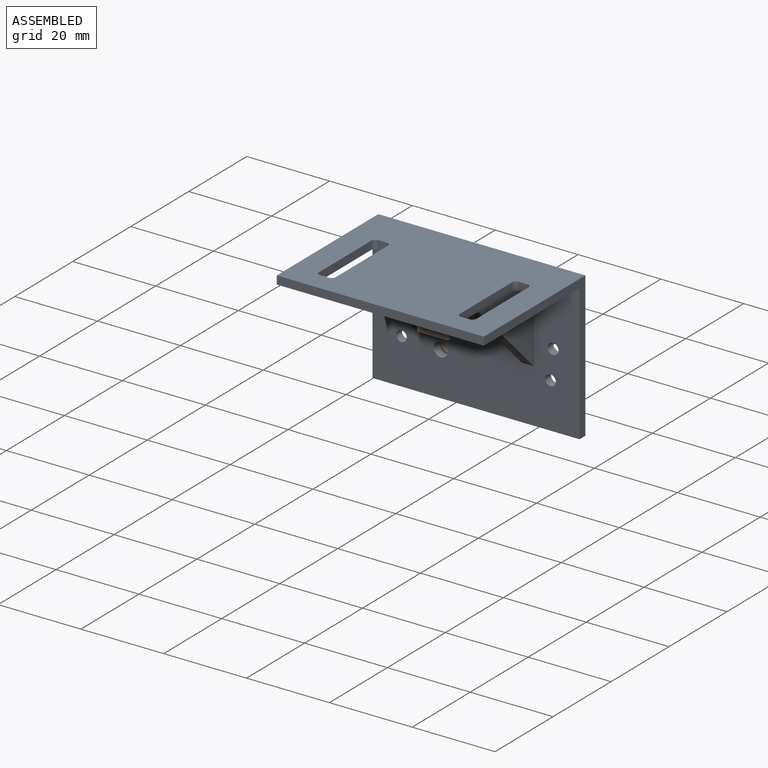
[diagram: assembled view]
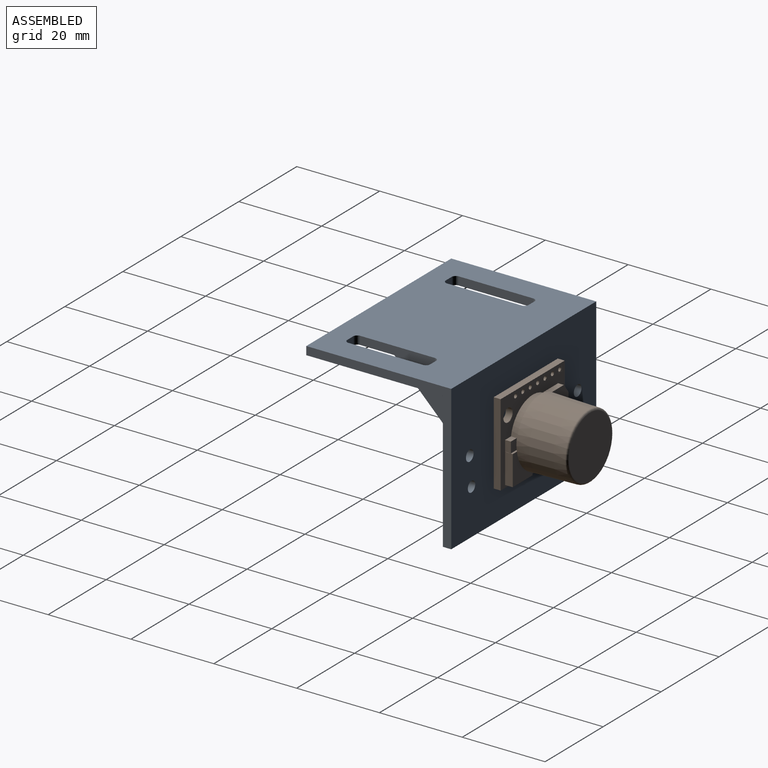
[diagram: assembled view, second angle]
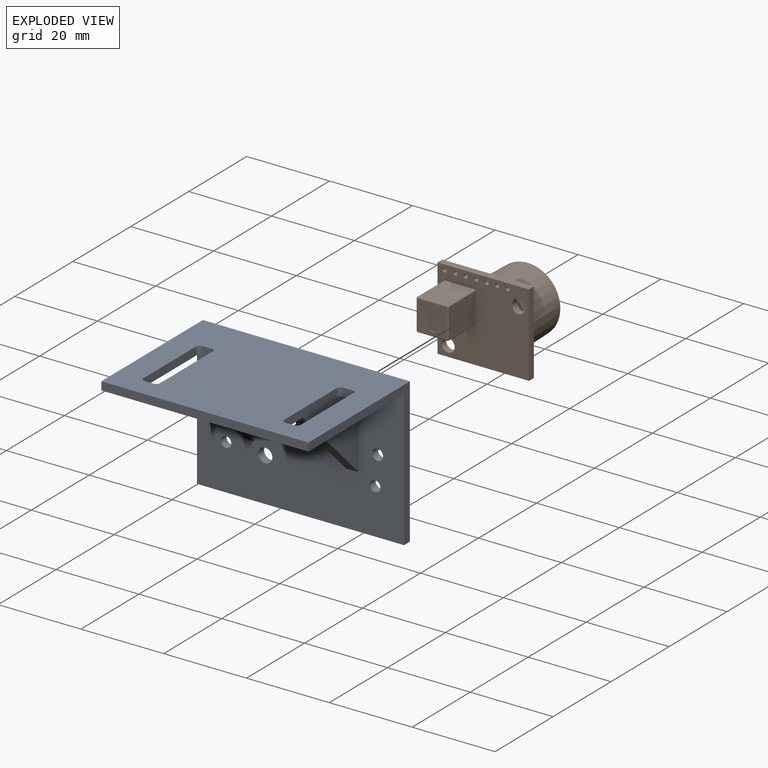
[diagram: exploded view]
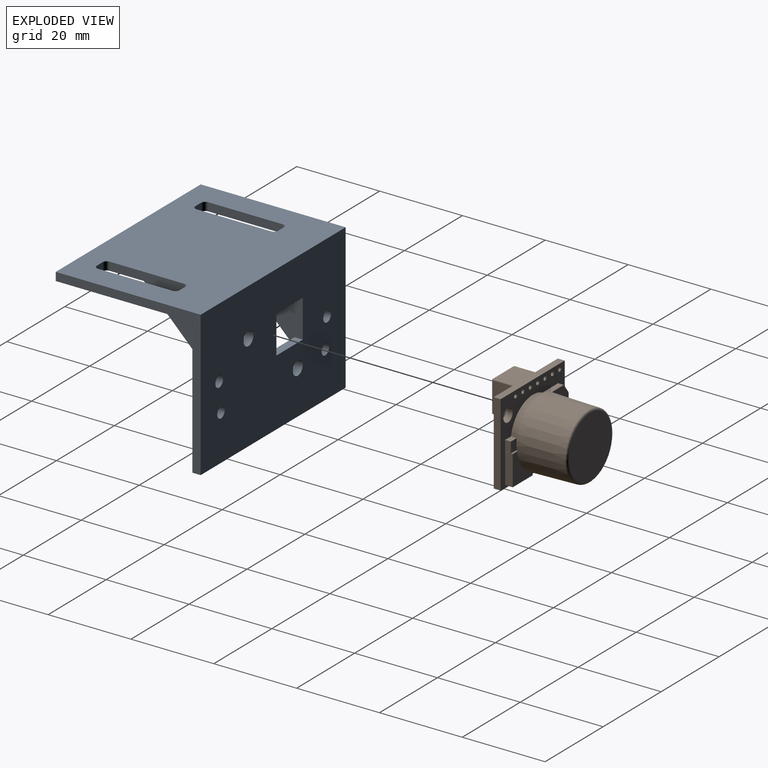
[diagram: exploded view, second angle]
ASSEMBLY  parts=2 mates=2
PART A: 40 faces, bbox 50x35x35 mm
  f0: plane 50x33mm, normal (0,0,-1), area 1370.7mm2, adj f2,f4,f6,f7,f8,f9,f10,f11
  f1: plane 50x35mm, normal (0,0,1), area 1590.7mm2, adj f3,f4,f6,f7,f24,f25,f26,f27
  f2: plane 50x33mm, normal (0,-1,0), area 1407.7mm2, adj f0,f5,f6,f7,f8,f9,f10,f11
  f3: plane 50x35mm, normal (0,1,0), area 1627.7mm2, adj f1,f5,f6,f7,f14,f15,f16,f17
  f4: plane 50x2mm, normal (0,-1,0), area 100mm2, adj f0,f1,f6,f7
  f5: plane 50x2mm, normal (0,0,-1), area 100mm2, adj f2,f3,f6,f7
  f6: plane 35x35mm, normal (1,0,0), area 136mm2, adj f0,f1,f2,f3,f4,f5
  f7: plane 35x35mm, normal (-1,0,0), area 136mm2, adj f0,f1,f2,f3,f4,f5
  f8: plane 20x20mm, normal (0,-0.71,-0.71), area 84.9mm2, adj f0,f2,f9,f10
  f9: plane 20x20mm, normal (1,0,0), area 200mm2, adj f0,f2,f8
  f10: plane 20x20mm, normal (-1,0,0), area 200mm2, adj f0,f2,f8
  f11: plane 20x20mm, normal (0,-0.71,-0.71), area 84.9mm2, adj f0,f2,f12,f13
  f12: plane 20x20mm, normal (-1,0,0), area 200mm2, adj f0,f2,f11
  f13: plane 20x20mm, normal (1,0,0), area 200mm2, adj f0,f2,f11
  f14: plane 9.12x2mm, normal (0,0,-1), area 18.2mm2, adj f2,f3,f15,f17
  f15: plane 9.12x2mm, normal (-1,0,0), area 18.2mm2, adj f2,f3,f14,f16
  f16: plane 9.12x2mm, normal (0,0,1), area 18.2mm2, adj f2,f3,f15,f17
  f17: plane 9.12x2mm, normal (1,0,0), area 18.2mm2, adj f2,f3,f14,f16
  f18: cylinder r=1.69mm len=3.38mm, axis (0,1,0), area 21.2mm2, adj f2,f3
  f19: cylinder r=1.69mm len=3.38mm, axis (0,1,0), area 21.2mm2, adj f2,f3
  f20: cylinder r=1.28mm len=2.55mm, axis (0,1,0), area 16mm2, adj f2,f3
  f21: cylinder r=1.28mm len=2.55mm, axis (0,1,0), area 16mm2, adj f2,f3
  f22: cylinder r=1.32mm len=2.64mm, axis (0,1,0), area 16.6mm2, adj f2,f3
  f23: cylinder r=1.32mm len=2.64mm, axis (0,1,0), area 16.6mm2, adj f2,f3
  f24: plane 2.03x2mm, normal (0,-1,0), area 4.1mm2, adj f0,f1,f25,f31
  f25: cylinder r=1mm len=2mm, axis (0,0,1), area 3.1mm2, adj f0,f1,f24,f26
  f26: plane 18x2mm, normal (1,0,0), area 36mm2, adj f0,f1,f25,f27
  f27: cylinder r=1mm len=2mm, axis (0,0,1), area 3.1mm2, adj f0,f1,f26,f28
  f28: plane 2.03x2mm, normal (0,1,0), area 4.1mm2, adj f0,f1,f27,f29
  f29: cylinder r=1mm len=2mm, axis (0,0,1), area 3.1mm2, adj f0,f1,f28,f30
  f30: plane 18x2mm, normal (-1,0,0), area 36mm2, adj f0,f1,f29,f31
  f31: cylinder r=1mm len=2mm, axis (0,0,1), area 3.1mm2, adj f0,f1,f24,f30
  f32: plane 2.03x2mm, normal (0,-1,0), area 4.1mm2, adj f0,f1,f33,f39
  f33: cylinder r=1mm len=2mm, axis (0,0,1), area 3.1mm2, adj f0,f1,f32,f34
  f34: plane 18x2mm, normal (1,0,0), area 36mm2, adj f0,f1,f33,f35
  f35: cylinder r=1mm len=2mm, axis (0,0,1), area 3.1mm2, adj f0,f1,f34,f36
  f36: plane 2.03x2mm, normal (0,1,0), area 4.1mm2, adj f0,f1,f35,f37
  f37: cylinder r=1mm len=2mm, axis (0,0,1), area 3.1mm2, adj f0,f1,f36,f38
  f38: plane 18x2mm, normal (-1,0,0), area 36mm2, adj f0,f1,f37,f39
  f39: cylinder r=1mm len=2mm, axis (0,0,1), area 3.1mm2, adj f0,f1,f32,f38
PART B: 282 faces, bbox 22.1x19.9x25.1 mm
  f0: plane 0.11x0.05mm, normal (0,1,0), area 0mm2, adj f1,f6,f7,f206
  f1: plane 0.75x0.05mm, normal (1,0,0), area 0mm2, adj f0,f2,f7,f206
  f2: plane 0.09x0.05mm, normal (0,-1,0), area 0mm2, adj f1,f3,f7,f206
  f3: extruded ~0.19x0.13mm, area 0mm2, adj f2,f4,f7,f206
  f4: plane 0.09x0.05mm, normal (-1,0,0), area 0mm2, adj f3,f5,f7,f206
  f5: extruded ~0.17x0.05mm, area 0mm2, adj f4,f6,f7,f206
  f6: plane 0.56x0.05mm, normal (-1,0,0), area 0mm2, adj f0,f5,f7,f206
  f7: plane 0.75x0.28mm, normal (0,0,-1), area 0.1mm2, adj f0,f1,f2,f3,f4,f5,f6
  f8: plane 0.49x0.05mm, normal (0,1,0), area 0mm2, adj f9,f26,f27,f206
  f9: plane 0.1x0.05mm, normal (1,0,0), area 0mm2, adj f8,f10,f27,f206
  f10: plane 0.34x0.05mm, normal (0,-1,0), area 0mm2, adj f9,f11,f27,f206
  f11: extruded ~0.13x0.12mm, area 0mm2, adj f10,f12,f27,f206
  f12: extruded ~0.17x0.17mm, area 0mm2, adj f11,f13,f27,f206
  f13: cylinder r=0.25mm len=0.14mm, axis (0,0,1), area 0mm2, adj f12,f14,f27,f206
  f14: extruded ~0.15x0.06mm, area 0mm2, adj f13,f15,f27,f206
  f15: extruded ~0.17x0.06mm, area 0mm2, adj f14,f16,f27,f206
  f16: extruded ~0.17x0.06mm, area 0mm2, adj f15,f17,f27,f206
  f17: extruded ~0.17x0.07mm, area 0mm2, adj f16,f18,f27,f206
  f18: plane 0.11x0.05mm, normal (0,1,0), area 0mm2, adj f17,f19,f27,f206
  f19: extruded ~0.1x0.05mm, area 0mm2, adj f18,f20,f27,f206
  f20: cylinder r=0.13mm len=0.08mm, axis (0,0,-1), area 0mm2, adj f19,f21,f27,f206
  f21: extruded ~0.09x0.05mm, area 0mm2, adj f20,f22,f27,f206
  f22: extruded ~0.09x0.05mm, area 0mm2, adj f21,f23,f27,f206
  f23: cylinder r=0.18mm len=0.11mm, axis (0,0,-1), area 0mm2, adj f22,f24,f27,f206
  f24: extruded ~0.15x0.14mm, area 0mm2, adj f23,f25,f27,f206
  f25: extruded ~0.15x0.15mm, area 0mm2, adj f24,f26,f27,f206
  f26: cylinder r=0.25mm len=0.14mm, axis (0,0,1), area 0mm2, adj f8,f25,f27,f206
  f27: plane 0.75x0.49mm, normal (0,0,-1), area 0.2mm2, adj f8,f9,f10,f11,f12,f13,f14,f15
  f28: cylinder r=0.14mm len=0.1mm, axis (0,0,1), area 0mm2, adj f29,f54,f55,f206
  f29: cylinder r=0.12mm len=0.07mm, axis (0,0,1), area 0mm2, adj f28,f30,f55,f206
  f30: cylinder r=0.17mm len=0.09mm, axis (0,0,1), area 0mm2, adj f29,f31,f55,f206
  f31: extruded ~0.14x0.06mm, area 0mm2, adj f30,f32,f55,f206
  f32: extruded ~0.16x0.05mm, area 0mm2, adj f31,f33,f55,f206
  f33: extruded ~0.15x0.05mm, area 0mm2, adj f32,f34,f55,f206
  f34: extruded ~0.16x0.07mm, area 0mm2, adj f33,f35,f55,f206
  f35: plane 0.11x0.05mm, normal (0,1,0), area 0mm2, adj f34,f36,f55,f206
  f36: extruded ~0.11x0.11mm, area 0mm2, adj f35,f37,f55,f206
  f37: extruded ~0.08x0.05mm, area 0mm2, adj f36,f38,f55,f206
  f38: extruded ~0.08x0.05mm, area 0mm2, adj f37,f39,f55,f206
  f39: extruded ~0.12x0.11mm, area 0mm2, adj f38,f40,f55,f206
  f40: plane 0.05x0.03mm, normal (0,-1,0), area 0mm2, adj f39,f41,f55,f206
  f41: plane 0.09x0.05mm, normal (-1,0,0), area 0mm2, adj f40,f42,f55,f206
  f42: plane 0.05x0.05mm, normal (0,1,0), area 0mm2, adj f41,f43,f55,f206
  f43: extruded ~0.11x0.05mm, area 0mm2, adj f42,f44,f55,f206
  f44: extruded ~0.1x0.05mm, area 0mm2, adj f43,f45,f55,f206
  f45: extruded ~0.1x0.05mm, area 0mm2, adj f44,f46,f55,f206
  f46: extruded ~0.1x0.05mm, area 0mm2, adj f45,f47,f55,f206
  f47: extruded ~0.09x0.05mm, area 0mm2, adj f46,f48,f55,f206
  f48: extruded ~0.09x0.05mm, area 0mm2, adj f47,f49,f55,f206
  f49: plane 0.12x0.05mm, normal (0,-1,0), area 0mm2, adj f48,f50,f55,f206
  f50: extruded ~0.16x0.07mm, area 0mm2, adj f49,f51,f55,f206
  f51: extruded ~0.17x0.06mm, area 0mm2, adj f50,f52,f55,f206
  f52: extruded ~0.18x0.06mm, area 0mm2, adj f51,f53,f55,f206
  f53: extruded ~0.17x0.07mm, area 0mm2, adj f52,f54,f55,f206
  f54: cylinder r=0.19mm len=0.12mm, axis (0,0,1), area 0mm2, adj f28,f53,f55,f206
  f55: plane 0.76x0.49mm, normal (0,0,-1), area 0.2mm2, adj f28,f29,f30,f31,f32,f33,f34,f35
  f56: plane 0.1x0.05mm, normal (0,1,0), area 0mm2, adj f57,f66,f70,f206
  f57: plane 0.1x0.05mm, normal (1,0,0), area 0mm2, adj f56,f58,f70,f206
  f58: plane 0.1x0.05mm, normal (0,-1,0), area 0mm2, adj f57,f59,f70,f206
  f59: plane 0.47x0.05mm, normal (1,0,0), area 0mm2, adj f58,f60,f70,f206
  f60: plane 0.09x0.05mm, normal (0,-1,0), area 0mm2, adj f59,f61,f70,f206
  f61: plane 0.48x0.33mm, normal (-0.82,-0.57,0), area 0mm2, adj f60,f62,f70,f206
  f62: plane 0.09x0.05mm, normal (-1,0,0), area 0mm2, adj f61,f63,f70,f206
  f63: plane 0.3x0.05mm, normal (0,1,0), area 0mm2, adj f62,f64,f70,f206
  f64: plane 0.17x0.05mm, normal (-1,0,0), area 0mm2, adj f63,f65,f70,f206
  f65: plane 0.11x0.05mm, normal (0,1,0), area 0mm2, adj f64,f66,f70,f206
  f66: plane 0.17x0.05mm, normal (1,0,0), area 0mm2, adj f56,f65,f70,f206
  f67: plane 0.31x0.05mm, normal (-1,0,0), area 0mm2, adj f68,f69,f70,f71
  f68: plane 0.2x0.05mm, normal (0,-1,0), area 0mm2, adj f67,f69,f70,f71
  f69: plane 0.31x0.2mm, normal (0.84,0.54,0), area 0mm2, adj f67,f68,f70,f71
  f70: plane 0.74x0.51mm, normal (0,0,-1), area 0.2mm2, adj f56,f57,f58,f59,f60,f61,f62,f63
  f71: plane 0.31x0.2mm, normal (0,0,-1), area 0mm2, adj f67,f68,f69
  f72: extruded ~0.12x0.05mm, area 0mm2, adj f73,f92,f93,f206
  f73: plane 0.18x0.05mm, normal (1,0.08,0), area 0mm2, adj f72,f74,f93,f206
  f74: plane 0.3x0.05mm, normal (0,1,0), area 0mm2, adj f73,f75,f93,f206
  f75: plane 0.1x0.05mm, normal (1,0,0), area 0mm2, adj f74,f76,f93,f206
  f76: plane 0.4x0.05mm, normal (0,-1,0), area 0mm2, adj f75,f77,f93,f206
  f77: plane 0.4x0.05mm, normal (-1,-0.08,0), area 0mm2, adj f76,f78,f93,f206
  f78: plane 0.09x0.05mm, normal (0,1,0), area 0mm2, adj f77,f79,f93,f206
  f79: extruded ~0.12x0.06mm, area 0mm2, adj f78,f80,f93,f206
  f80: extruded ~0.1x0.05mm, area 0mm2, adj f79,f81,f93,f206
  f81: extruded ~0.11x0.05mm, area 0mm2, adj f80,f82,f93,f206
  f82: extruded ~0.12x0.05mm, area 0mm2, adj f81,f83,f93,f206
  f83: cylinder r=0.12mm len=0.1mm, axis (0,0,-1), area 0mm2, adj f82,f84,f93,f206
  f84: cylinder r=0.12mm len=0.08mm, axis (0,0,-1), area 0mm2, adj f83,f85,f93,f206
  f85: extruded ~0.1x0.05mm, area 0mm2, adj f84,f86,f93,f206
  f86: plane 0.11x0.05mm, normal (0,-1,0), area 0mm2, adj f85,f87,f93,f206
  f87: extruded ~0.17x0.08mm, area 0mm2, adj f86,f88,f93,f206
  f88: extruded ~0.16x0.05mm, area 0mm2, adj f87,f89,f93,f206
  f89: extruded ~0.18x0.08mm, area 0mm2, adj f88,f90,f93,f206
  f90: extruded ~0.19x0.07mm, area 0mm2, adj f89,f91,f93,f206
  f91: extruded ~0.18x0.07mm, area 0mm2, adj f90,f92,f93,f206
  f92: cylinder r=0.22mm len=0.16mm, axis (0,0,1), area 0mm2, adj f72,f91,f93,f206
  f93: plane 0.75x0.49mm, normal (0,0,-1), area 0.2mm2, adj f72,f73,f74,f75,f76,f77,f78,f79
  f94: plane 0.1x0.05mm, normal (1,0,0), area 0mm2, adj f95,f105,f106,f206
  f95: plane 0.2x0.05mm, normal (0,-1,0), area 0mm2, adj f94,f96,f106,f206
  f96: plane 0.2x0.05mm, normal (1,0,0), area 0mm2, adj f95,f97,f106,f206
  f97: plane 0.1x0.05mm, normal (0,-1,0), area 0mm2, adj f96,f98,f106,f206
  f98: plane 0.2x0.05mm, normal (-1,0,0), area 0mm2, adj f97,f99,f106,f206
  f99: plane 0.2x0.05mm, normal (0,-1,0), area 0mm2, adj f98,f100,f106,f206
  f100: plane 0.1x0.05mm, normal (-1,0,0), area 0mm2, adj f99,f101,f106,f206
  f101: plane 0.2x0.05mm, normal (0,1,0), area 0mm2, adj f100,f102,f106,f206
  f102: plane 0.2x0.05mm, normal (-1,0,0), area 0mm2, adj f101,f103,f106,f206
  f103: plane 0.1x0.05mm, normal (0,1,0), area 0mm2, adj f102,f104,f106,f206
  f104: plane 0.2x0.05mm, normal (1,0,0), area 0mm2, adj f103,f105,f106,f206
  f105: plane 0.2x0.05mm, normal (0,1,0), area 0mm2, adj f94,f104,f106,f206
  f106: plane 0.49x0.49mm, normal (0,0,-1), area 0.1mm2, adj f94,f95,f96,f97,f98,f99,f100,f101
  f107: plane 0.73x0.28mm, normal (0.93,0.36,0), area 0mm2, adj f108,f113,f114,f206
  f108: plane 0.12x0.05mm, normal (0,-1,0), area 0mm2, adj f107,f109,f114,f206
  f109: plane 0.61x0.22mm, normal (-0.94,-0.34,0), area 0mm2, adj f108,f110,f114,f206
  f110: plane 0.61x0.22mm, normal (0.94,-0.34,0), area 0mm2, adj f109,f111,f114,f206
  f111: plane 0.12x0.05mm, normal (0,-1,0), area 0mm2, adj f110,f112,f114,f206
  f112: plane 0.73x0.28mm, normal (-0.93,0.36,0), area 0mm2, adj f111,f113,f114,f206
  f113: plane 0.11x0.05mm, normal (0,1,0), area 0mm2, adj f107,f112,f114,f206
  f114: plane 0.73x0.67mm, normal (0,0,-1), area 0.2mm2, adj f107,f108,f109,f110,f111,f112,f113
  f115: plane 0.24x0.05mm, normal (0,-1,0), area 0mm2, adj f116,f119,f127,f206
  f116: plane 0.73x0.05mm, normal (-1,0,0), area 0mm2, adj f115,f117,f127,f206
  f117: plane 0.24x0.05mm, normal (0,1,0), area 0mm2, adj f116,f118,f127,f206
  f118: extruded ~0.37x0.37mm, area 0mm2, adj f117,f119,f127,f206
  f119: extruded ~0.37x0.36mm, area 0mm2, adj f115,f118,f127,f206
  f120: plane 0.12x0.05mm, normal (0,-1,0), area 0mm2, adj f121,f126,f127,f128
  f121: plane 0.52x0.05mm, normal (1,0,0), area 0mm2, adj f120,f122,f127,f128
  f122: plane 0.12x0.05mm, normal (0,1,0), area 0mm2, adj f121,f123,f127,f128
  f123: extruded ~0.2x0.07mm, area 0mm2, adj f122,f124,f127,f128
  f124: extruded ~0.19x0.05mm, area 0mm2, adj f123,f125,f127,f128
  f125: extruded ~0.2x0.05mm, area 0mm2, adj f124,f126,f127,f128
  f126: extruded ~0.2x0.07mm, area 0mm2, adj f120,f125,f127,f128
  f127: plane 0.73x0.61mm, normal (0,0,-1), area 0.2mm2, adj f115,f116,f117,f118,f119,f120,f121,f122
  f128: plane 0.52x0.38mm, normal (0,0,-1), area 0.2mm2, adj f120,f121,f122,f123,f124,f125,f126
  f129: plane 0.73x0.05mm, normal (1,0,0), area 0mm2, adj f130,f138,f139,f206
  f130: plane 0.11x0.05mm, normal (0,-1,0), area 0mm2, adj f129,f131,f139,f206
  f131: plane 0.56x0.05mm, normal (-1,0,0), area 0mm2, adj f130,f132,f139,f206
  f132: plane 0.56x0.36mm, normal (0.84,-0.54,0), area 0mm2, adj f131,f133,f139,f206
  f133: plane 0.11x0.05mm, normal (0,-1,0), area 0mm2, adj f132,f134,f139,f206
  f134: plane 0.73x0.05mm, normal (-1,0,0), area 0mm2, adj f133,f135,f139,f206
  f135: plane 0.11x0.05mm, normal (0,1,0), area 0mm2, adj f134,f136,f139,f206
  f136: plane 0.56x0.05mm, normal (1,0,0), area 0mm2, adj f135,f137,f139,f206
  f137: plane 0.56x0.36mm, normal (-0.84,0.54,0), area 0mm2, adj f136,f138,f139,f206
  f138: plane 0.11x0.05mm, normal (0,1,0), area 0mm2, adj f129,f137,f139,f206
  f139: plane 0.73x0.58mm, normal (0,0,-1), area 0.2mm2, adj f129,f130,f131,f132,f133,f134,f135,f136
  f140: extruded ~0.22x0.09mm, area 0mm2, adj f141,f161,f162,f206
  f141: plane 0.07x0.05mm, normal (-0.96,0.27,0), area 0mm2, adj f140,f142,f162,f206
  f142: plane 0.08x0.05mm, normal (0,1,0), area 0mm2, adj f141,f143,f162,f206
  f143: plane 0.38x0.05mm, normal (1,0,0), area 0mm2, adj f142,f144,f162,f206
  f144: plane 0.3x0.05mm, normal (0,-1,0), area 0mm2, adj f143,f145,f162,f206
  f145: plane 0.11x0.05mm, normal (-1,0,0), area 0mm2, adj f144,f146,f162,f206
  f146: plane 0.19x0.05mm, normal (0,1,0), area 0mm2, adj f145,f147,f162,f206
  f147: plane 0.1x0.05mm, normal (-1,0,0), area 0mm2, adj f146,f148,f162,f206
  f148: extruded ~0.22x0.1mm, area 0mm2, adj f147,f149,f162,f206
  f149: extruded ~0.17x0.07mm, area 0mm2, adj f148,f150,f162,f206
  f150: extruded ~0.21x0.07mm, area 0mm2, adj f149,f151,f162,f206
  f151: extruded ~0.21x0.06mm, area 0mm2, adj f150,f152,f162,f206
  f152: extruded ~0.17x0.07mm, area 0mm2, adj f151,f153,f162,f206
  f153: extruded ~0.14x0.05mm, area 0mm2, adj f152,f154,f162,f206
  f154: extruded ~0.11x0.06mm, area 0mm2, adj f153,f155,f162,f206
  f155: plane 0.12x0.05mm, normal (0,1,0), area 0mm2, adj f154,f156,f162,f206
  f156: extruded ~0.18x0.1mm, area 0mm2, adj f155,f157,f162,f206
  f157: extruded ~0.22x0.06mm, area 0mm2, adj f156,f158,f162,f206
  f158: extruded ~0.25x0.1mm, area 0mm2, adj f157,f159,f162,f206
  f159: extruded ~0.28x0.1mm, area 0mm2, adj f158,f160,f162,f206
  f160: extruded ~0.28x0.1mm, area 0mm2, adj f159,f161,f162,f206
  f161: extruded ~0.26x0.1mm, area 0mm2, adj f140,f160,f162,f206
  f162: plane 0.76x0.69mm, normal (0,0,-1), area 0.2mm2, adj f140,f141,f142,f143,f144,f145,f146,f147
  f163: cylinder r=0.53mm len=1.07mm, axis (0,0,-1), area 0.1mm2, adj f164,f184
  f164: plane 1.07x1.07mm, normal (0,0,1), area 0.1mm2, adj f163,f270
  f165: cylinder r=1.65mm len=3.3mm, axis (0,0,-1), area 0.3mm2, adj f166,f184
  f166: plane 3.3x3.3mm, normal (0,0,1), area 0.6mm2, adj f165,f277
  f167: cylinder r=0.53mm len=1.07mm, axis (0,0,-1), area 0.1mm2, adj f168,f184
  f168: plane 1.07x1.07mm, normal (0,0,1), area 0.1mm2, adj f167,f274
  f169: cylinder r=0.53mm len=1.07mm, axis (0,0,-1), area 0.1mm2, adj f170,f184
  f170: plane 1.07x1.07mm, normal (0,0,1), area 0.1mm2, adj f169,f272
  f171: plane 1.27x0.03mm, normal (0,1,0), area 0mm2, adj f172,f174,f175,f184
  f172: plane 1.27x0.03mm, normal (-1,0,0), area 0mm2, adj f171,f173,f175,f184
  f173: plane 1.27x0.03mm, normal (0,-1,0), area 0mm2, adj f172,f174,f175,f184
  f174: plane 1.27x0.03mm, normal (1,0,0), area 0mm2, adj f171,f173,f175,f184
  f175: plane 1.27x1.27mm, normal (0,0,1), area 0.8mm2, adj f171,f172,f173,f174,f275
  f176: cylinder r=0.53mm len=1.07mm, axis (0,0,-1), area 0.1mm2, adj f177,f184
  f177: plane 1.07x1.07mm, normal (0,0,1), area 0.1mm2, adj f176,f273
  f178: cylinder r=1.65mm len=3.3mm, axis (0,0,-1), area 0.3mm2, adj f179,f184
  f179: plane 3.3x3.3mm, normal (0,0,1), area 0.6mm2, adj f178,f276
  f180: cylinder r=0.53mm len=1.07mm, axis (0,0,-1), area 0.1mm2, adj f181,f184
  f181: plane 1.07x1.07mm, normal (0,0,1), area 0.1mm2, adj f180,f269
  f182: cylinder r=0.53mm len=1.07mm, axis (0,0,-1), area 0.1mm2, adj f183,f184
  f183: plane 1.07x1.07mm, normal (0,0,1), area 0.1mm2, adj f182,f271
  f184: plane 22.1x19.94mm, normal (0,0,1), area 153mm2, adj f163,f165,f167,f169,f171,f172,f173,f174
  f185: cylinder r=0.53mm len=1.07mm, axis (0,0,1), area 0.1mm2, adj f186,f206
  f186: plane 1.07x1.07mm, normal (0,0,-1), area 0.1mm2, adj f185,f273
  f187: cylinder r=0.53mm len=1.07mm, axis (0,0,1), area 0.1mm2, adj f188,f206
  f188: plane 1.07x1.07mm, normal (0,0,-1), area 0.1mm2, adj f187,f270
  f189: cylinder r=0.53mm len=1.07mm, axis (0,0,1), area 0.1mm2, adj f190,f206
  f190: plane 1.07x1.07mm, normal (0,0,-1), area 0.1mm2, adj f189,f269
  f191: cylinder r=1.65mm len=3.3mm, axis (0,0,1), area 0.3mm2, adj f192,f206
  f192: plane 3.3x3.3mm, normal (0,0,-1), area 0.6mm2, adj f191,f276
  f193: plane 1.27x0.03mm, normal (0,1,0), area 0mm2, adj f194,f196,f197,f206
  f194: plane 1.27x0.03mm, normal (1,0,0), area 0mm2, adj f193,f195,f197,f206
  f195: plane 1.27x0.03mm, normal (0,-1,0), area 0mm2, adj f194,f196,f197,f206
  f196: plane 1.27x0.03mm, normal (-1,0,0), area 0mm2, adj f193,f195,f197,f206
  f197: plane 1.27x1.27mm, normal (0,0,-1), area 0.8mm2, adj f193,f194,f195,f196,f275
  f198: cylinder r=1.65mm len=3.3mm, axis (0,0,1), area 0.3mm2, adj f199,f206
  f199: plane 3.3x3.3mm, normal (0,0,-1), area 0.6mm2, adj f198,f277
  f200: cylinder r=0.53mm len=1.07mm, axis (0,0,1), area 0.1mm2, adj f201,f206
  f201: plane 1.07x1.07mm, normal (0,0,-1), area 0.1mm2, adj f200,f271
  f202: cylinder r=0.53mm len=1.07mm, axis (0,0,1), area 0.1mm2, adj f203,f206
  f203: plane 1.07x1.07mm, normal (0,0,-1), area 0.1mm2, adj f202,f272
  f204: cylinder r=0.53mm len=1.07mm, axis (0,0,1), area 0.1mm2, adj f205,f206
  f205: plane 1.07x1.07mm, normal (0,0,-1), area 0.1mm2, adj f204,f274
  f206: plane 22.1x19.94mm, normal (0,0,-1), area 355.1mm2, adj f0,f1,f2,f3,f4,f5,f6,f8
  f207: plane 2.38x1.4mm, normal (0,1,0), area 3.3mm2, adj f184,f211,f212,f225
  f208: plane 5.29x1.4mm, normal (0,-1,0), area 7.4mm2, adj f184,f209,f212,f225
  f209: plane 2.29x1.65mm, normal (-0.81,-0.59,0), area 3.9mm2, adj f184,f208,f210,f212
  f210: plane 7.37x1.4mm, normal (-1,0,0), area 10.3mm2, adj f184,f209,f211,f212
  f211: plane 1.91x1.65mm, normal (-0.65,0.76,0), area 3.5mm2, adj f184,f207,f210,f212
  f212: plane 11.3x6.94mm, normal (0,0,1), area 38.3mm2, adj f207,f208,f209,f210,f211,f225
  f213: plane 6.83x1.4mm, normal (0,1,0), area 9.5mm2, adj f184,f214,f215,f216
  f214: plane 1.4x1.31mm, normal (1,0,0), area 1.8mm2, adj f184,f213,f216,f225
  f215: plane 2.09x1.4mm, normal (-1,0,0), area 2.9mm2, adj f184,f213,f216,f225
  f216: plane 6.83x2.09mm, normal (0,0,1), area 7.8mm2, adj f213,f214,f215,f225
  f217: plane 2x1.4mm, normal (0,1,0), area 2.8mm2, adj f184,f218,f220,f225
  f218: plane 2.58x1.4mm, normal (1,0,0), area 3.6mm2, adj f184,f217,f219,f220
  f219: plane 2.03x1.4mm, normal (0,-1,0), area 2.8mm2, adj f184,f218,f220,f225
  f220: plane 2.58x2.03mm, normal (0,0,1), area 5mm2, adj f217,f218,f219,f225
  f221: torus R=7.42mm, axis (0,0,-1), area 38.3mm2, adj f222,f223
  f222: cone r=8.19mm half-angle=1.3deg, axis (0,0,-1), area 586mm2, adj f221,f224,f230
  f223: plane 14.84x14.84mm, normal (0,0,1), area 173mm2, adj f221
  f224: plane 16.38x16.38mm, normal (0,0,-1), area 23.5mm2, adj f222,f225,f228,f229
  f225: cylinder r=7.62mm len=15.24mm, axis (0,0,1), area 41.9mm2, adj f184,f207,f208,f212,f214,f215,f216,f217
  f226: plane 6.86x1.85mm, normal (0,1,0), area 12.7mm2, adj f184,f227,f229,f230
  f227: plane 7.24x1.85mm, normal (1,0,0), area 13.4mm2, adj f184,f226,f228,f230
  f228: plane 2x1.85mm, normal (0,-1,0), area 3.7mm2, adj f184,f224,f225,f227,f230
  f229: plane 1.85x1.32mm, normal (-1,0,0), area 2.4mm2, adj f184,f224,f225,f226,f230
  f230: plane 7.24x6.86mm, normal (0,0,1), area 25.1mm2, adj f222,f226,f227,f228,f229
  f231: cylinder r=0.13mm len=0.25mm, axis (0,0,1), area 0.1mm2, adj f232,f234,f239,f248
  f232: plane 1.32x0.25mm, normal (0,-1,0), area 0.3mm2, adj f231,f237,f239,f248
  f233: cylinder r=0.13mm len=0.25mm, axis (0,0,1), area 0.1mm2, adj f234,f236,f239,f248
  f234: plane 4.83x0.25mm, normal (1,0,0), area 1.2mm2, adj f231,f233,f239,f248
  f235: cylinder r=0.13mm len=0.25mm, axis (0,0,1), area 0.1mm2, adj f236,f238,f239,f248
  f236: plane 1.32x0.25mm, normal (0,1,0), area 0.3mm2, adj f233,f235,f239,f248
  f237: cylinder r=0.13mm len=0.25mm, axis (0,0,1), area 0.1mm2, adj f232,f238,f239,f248
  f238: plane 4.83x0.25mm, normal (-1,0,0), area 1.2mm2, adj f235,f237,f239,f248
  f239: plane 5.08x1.58mm, normal (0,0,-1), area 8mm2, adj f231,f232,f233,f234,f235,f236,f237,f238
  f240: cylinder r=3.81mm len=2.19mm, axis (0,0,1), area 0.2mm2, adj f241,f247,f248,f250
  f241: plane 2.74x0.05mm, normal (0,1,0), area 0.1mm2, adj f240,f242,f248,f262
  f242: cylinder r=3.81mm len=2.19mm, axis (0,0,1), area 0.2mm2, adj f241,f243,f248,f249
  f243: plane 2.74x0.05mm, normal (1,0,0), area 0.1mm2, adj f242,f244,f248,f257
  f244: cylinder r=3.81mm len=2.19mm, axis (0,0,1), area 0.2mm2, adj f243,f245,f248,f252
  f245: plane 2.74x0.05mm, normal (0,-1,0), area 0.1mm2, adj f244,f246,f248,f264
  f246: cylinder r=3.81mm len=2.19mm, axis (0,0,1), area 0.2mm2, adj f245,f247,f248,f251
  f247: plane 2.74x0.05mm, normal (-1,0,0), area 0.1mm2, adj f240,f246,f248,f263
  f248: plane 7.11x7.11mm, normal (0,0,-1), area 35.8mm2, adj f231,f232,f233,f234,f235,f236,f237,f238
  f249: plane 2.19x2.19mm, normal (0,0,-1), area 1.7mm2, adj f242,f257,f262
  f250: plane 2.19x2.19mm, normal (0,0,-1), area 1.7mm2, adj f240,f262,f263
  f251: plane 2.19x2.19mm, normal (0,0,-1), area 1.7mm2, adj f246,f263,f264
  f252: plane 2.19x2.19mm, normal (0,0,-1), area 1.7mm2, adj f244,f257,f264
  f253: sphere r=0.3mm, area 0.2mm2, adj f254,f257,f264
  f254: cylinder r=0.3mm len=9.22mm, axis (0,0,-1), area 4.4mm2, adj f206,f253,f265,f267
  f255: sphere r=0.3mm, area 0.1mm2, adj f256,f257,f262
  f256: cylinder r=0.3mm len=9.22mm, axis (0,0,-1), area 4.4mm2, adj f206,f255,f265,f266
  f257: cylinder r=0.3mm len=7.11mm, axis (0,-1,0), area 3.4mm2, adj f243,f249,f252,f253,f255,f265
  f258: sphere r=0.3mm, area 0.1mm2, adj f259,f263,f264
  f259: cylinder r=0.3mm len=9.22mm, axis (0,0,-1), area 4.4mm2, adj f206,f258,f267,f268
  f260: sphere r=0.3mm, area 0.1mm2, adj f261,f262,f263
  f261: cylinder r=0.3mm len=9.22mm, axis (0,0,-1), area 4.4mm2, adj f206,f260,f266,f268
  f262: cylinder r=0.3mm len=7.11mm, axis (1,0,0), area 3.4mm2, adj f241,f249,f250,f255,f260,f266
  f263: cylinder r=0.3mm len=7.11mm, axis (0,1,0), area 3.4mm2, adj f247,f250,f251,f258,f260,f268
  f264: cylinder r=0.3mm len=7.11mm, axis (-1,0,0), area 3.4mm2, adj f245,f251,f252,f253,f258,f267
  f265: plane 9.22x7.11mm, normal (-1,0,0), area 65.6mm2, adj f206,f254,f256,f257
  f266: plane 9.22x7.11mm, normal (0,-1,0), area 65.6mm2, adj f206,f256,f261,f262
  f267: plane 9.22x7.11mm, normal (0,1,0), area 65.6mm2, adj f206,f254,f259,f264
  f268: plane 9.22x7.11mm, normal (1,0,0), area 65.6mm2, adj f206,f259,f261,f263
  f269: cylinder r=0.5mm len=1.63mm, axis (0,0,-1), area 5.1mm2, adj f181,f190
  f270: cylinder r=0.5mm len=1.63mm, axis (0,0,-1), area 5.1mm2, adj f164,f188
  f271: cylinder r=0.5mm len=1.63mm, axis (0,0,-1), area 5.1mm2, adj f183,f201
  f272: cylinder r=0.5mm len=1.63mm, axis (0,0,-1), area 5.1mm2, adj f170,f203
  f273: cylinder r=0.5mm len=1.63mm, axis (0,0,-1), area 5.1mm2, adj f177,f186
  f274: cylinder r=0.5mm len=1.63mm, axis (0,0,-1), area 5.1mm2, adj f168,f205
  f275: cylinder r=0.5mm len=1.63mm, axis (0,0,-1), area 5.1mm2, adj f175,f197
  f276: cylinder r=1.59mm len=3.18mm, axis (0,0,-1), area 16.2mm2, adj f179,f192
  f277: cylinder r=1.59mm len=3.18mm, axis (0,0,-1), area 16.2mm2, adj f166,f199
  f278: plane 22.1x1.68mm, normal (0,1,0), area 37mm2, adj f184,f206,f279,f281
  f279: plane 19.94x1.68mm, normal (1,0,0), area 33.4mm2, adj f184,f206,f278,f280
  f280: plane 22.1x1.68mm, normal (0,-1,0), area 37mm2, adj f184,f206,f279,f281
  f281: plane 19.94x1.68mm, normal (-1,0,0), area 33.4mm2, adj f184,f206,f278,f280
PLACE A t=(-13.68,-7.75,-2.16)mm
PLACE B rot(axis=(-1,0,0),90deg) t=(-24.73,9.74,2.84)mm
MATE slider B.f165 <-> A.f19  axis (0,-1,0) through (-5.17,9.77,-1.61)mm
MATE slider A.f18 <-> B.f178  axis (0,-1,0) through (-22.19,7.25,-14.56)mm
